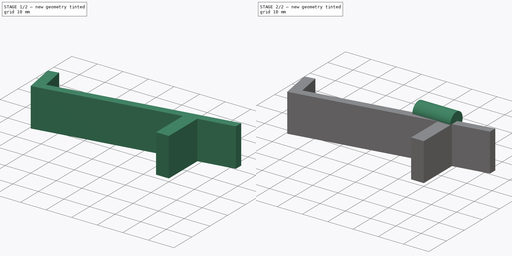
[diagram: build sequence overview — one tinted view per stage of 2, left to right]
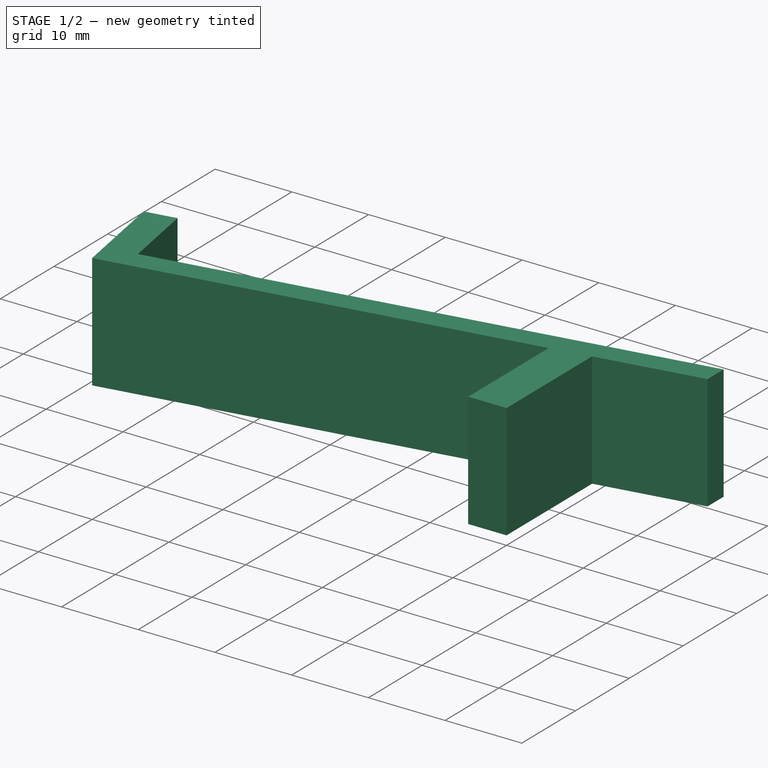
[diagram: stage 1 of 2 — iso view after this stage's code; geometry added in this stage tinted green]
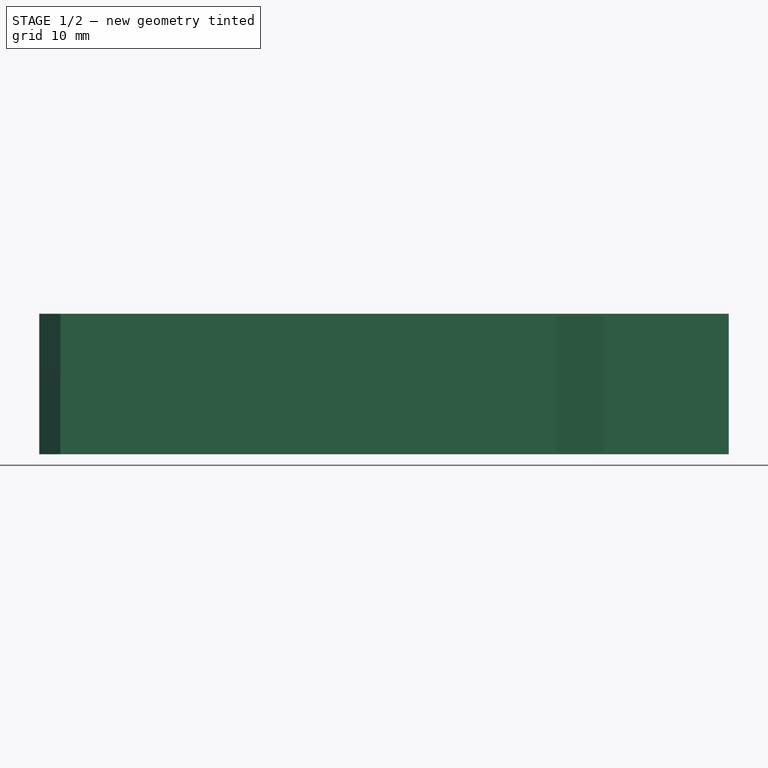
[diagram: stage 1 of 2 — front view after this stage's code; geometry added in this stage tinted green]
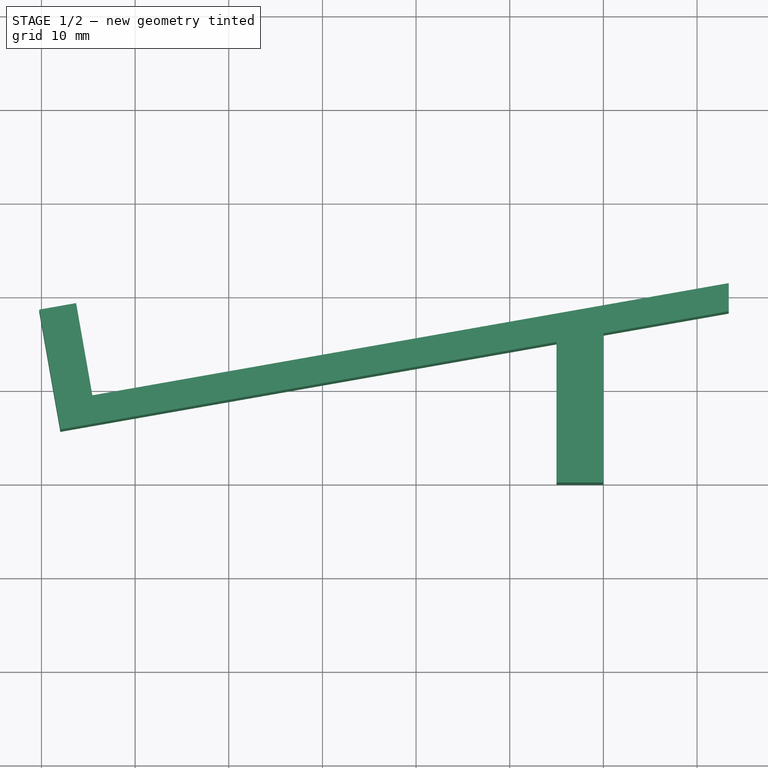
[diagram: stage 1 of 2 — top view after this stage's code; geometry added in this stage tinted green]
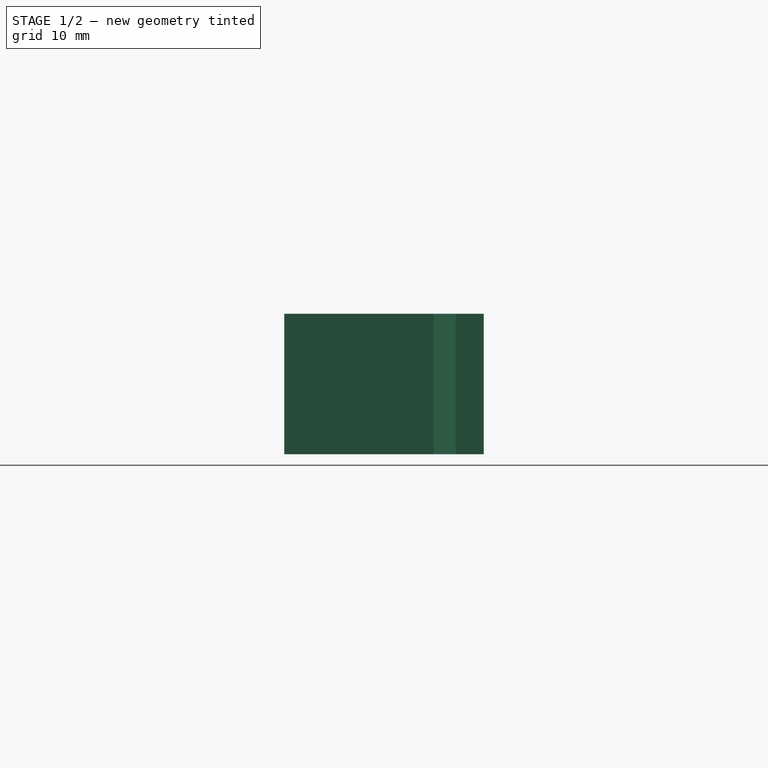
[diagram: stage 1 of 2 — right view after this stage's code; geometry added in this stage tinted green]
FCSTD DOCUMENT  (FreeCAD 0.16R)
Label: Hooks5
License: All rights reserved
LicenseURL: http://en.wikipedia.org/wiki/All_rights_reserved
objects: Sketcher::SketchObject×2, PartDesign::Pad×2
note: 6 computed .brp shape members not serialized (recipe doc carries the construction recipe); baked Part::Feature solids carry a one-line shape summary decoded from their .brp

FEATURE [Sketcher::SketchObject] Sketch
  sketch-geometry (10):
    g0: LineSegment StartX=0 StartY=0 StartZ=0 EndX=-5 EndY=0 EndZ=0
    g1: LineSegment StartX=-5 StartY=0 StartZ=0 EndX=-5 EndY=15 EndZ=0
    g2: LineSegment StartX=-5 StartY=15 StartZ=0 EndX=-57.9808 EndY=5.65805 EndZ=0
    g3: LineSegment StartX=-57.9808 StartY=5.65805 StartZ=0 EndX=-60.2382 EndY=18.4606 EndZ=0
    g4: LineSegment StartX=-60.2382 StartY=18.4606 StartZ=0 EndX=-56.299 EndY=19.1551 EndZ=0
    g5: LineSegment StartX=-56.299 StartY=19.1551 StartZ=0 EndX=-54.5625 EndY=9.30707 EndZ=0
    g6: LineSegment StartX=-54.5625 StartY=9.30707 StartZ=0 EndX=13.3892 EndY=21.2888 EndZ=0
    g7: LineSegment StartX=13.3892 StartY=21.2888 StartZ=0 EndX=13.3892 EndY=18.2888 EndZ=0
    g8: LineSegment StartX=13.3892 StartY=18.2888 StartZ=0 EndX=0 EndY=15.9279 EndZ=0
    g9: LineSegment StartX=0 StartY=0 StartZ=0 EndX=0 EndY=15.9279 EndZ=0
  constraints (29):
    c: PointOnObject(g0,g-1)
    c: Coincident(g0,g1)
    c: Vertical(g1)
    c: Coincident(g1,g2)
    c: Coincident(g2,g3)
    c: Coincident(g3,g4)
    c: Coincident(g4,g5)
    c: Coincident(g5,g6)
    c: Angle(g2) = -2.96706
    c: Distance(g5) = 10
    c: Distance(g6) = 69
    c: Distance(g0) = 5
    c: Perpendicular(g3,g2)
    c: Parallel(g4,g2)
    c: Parallel(g5,g3)
    c: Distance(g4) = 4
    c: Distance(g5,g2) = 3
    c: Parallel(g6,g2)
    c: Distance(g1) = 15
    c: Coincident(g7,g8)
    c: Vertical(g7)
    c: DistanceY(g7,g7) = 3
    c: Coincident(g9,g-1)
    c: Coincident(g9,g8)
    c: Vertical(g9)
    c: Coincident(g6,g7)
    c: Coincident(g0,g-1)
    c: Parallel(g8,g2)
    c: DistanceX(g7) = 13.3892
FEATURE [PartDesign::Pad] Pad
  Length = 15
  Length2 = 100
  Sketch = -> Sketch
  Type = 0
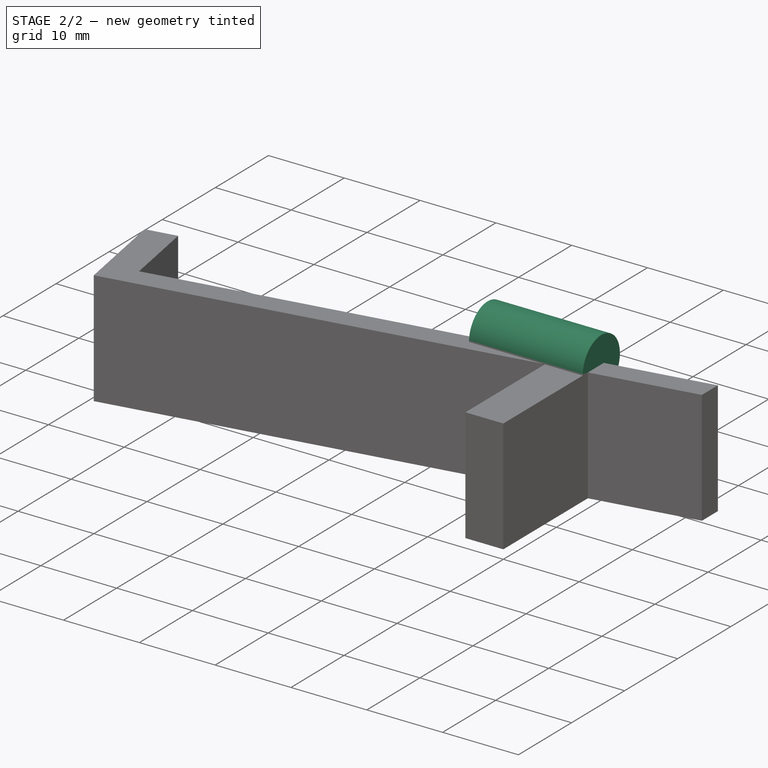
[diagram: stage 2 of 2 — iso view after this stage's code; geometry added in this stage tinted green]
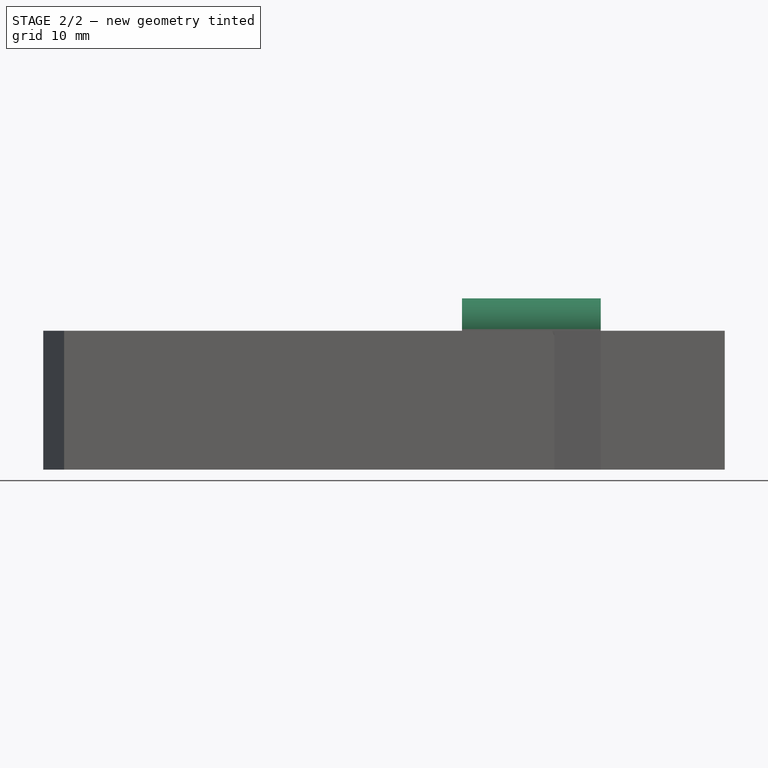
[diagram: stage 2 of 2 — front view after this stage's code; geometry added in this stage tinted green]
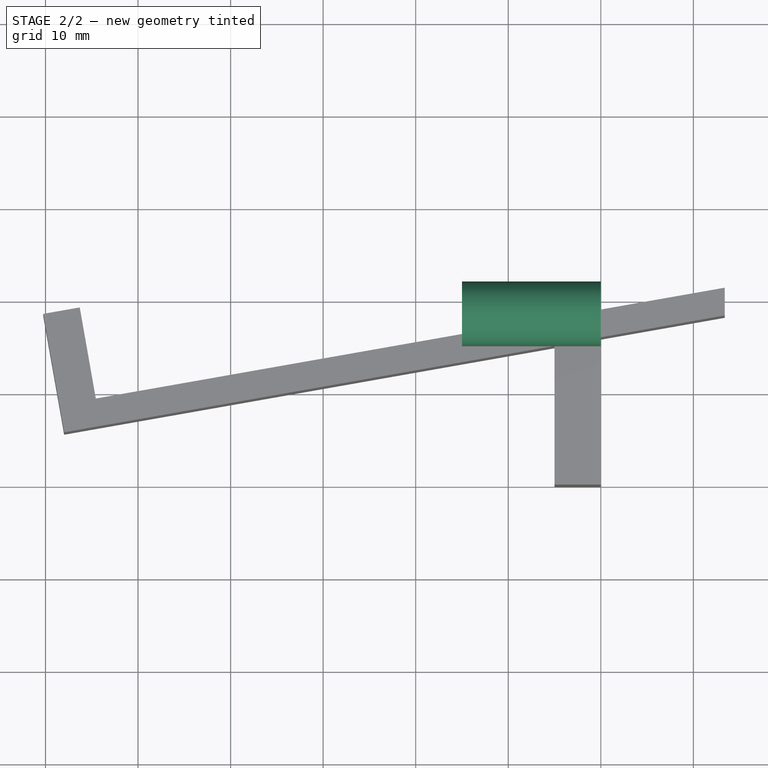
[diagram: stage 2 of 2 — top view after this stage's code; geometry added in this stage tinted green]
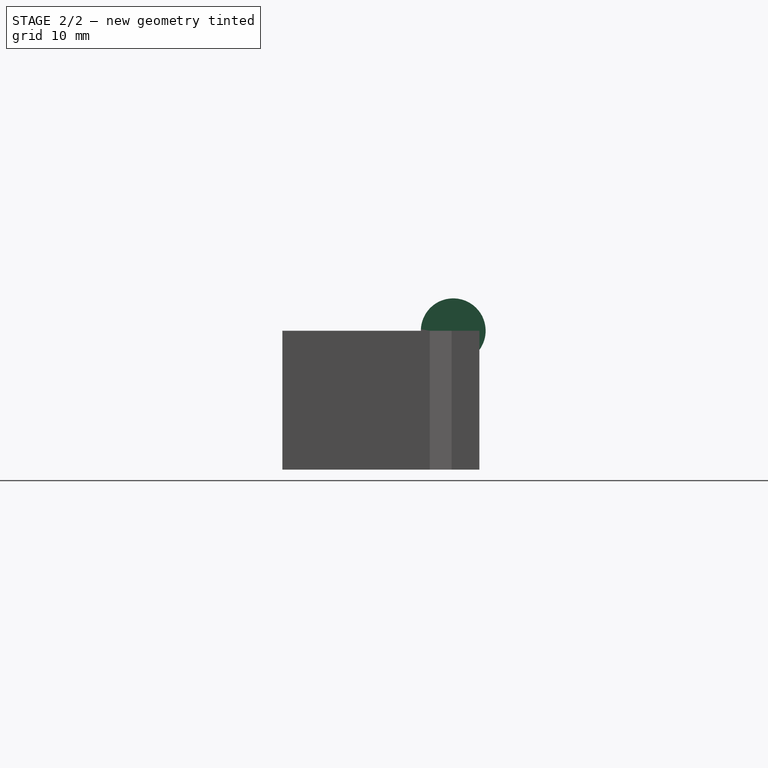
[diagram: stage 2 of 2 — right view after this stage's code; geometry added in this stage tinted green]
FEATURE [Sketcher::SketchObject] Sketch001
  ExternalGeometry = -> [Pad]
  Placement = pos=(0,0,0) rot=(0.57735,0.57735,0.57735;2.0944rad)
  Support = -> Pad [Face10]
  sketch-geometry (1):
    g0: Circle CenterX=18.4606 CenterY=15 CenterZ=0 NormalX=0 NormalY=0 NormalZ=1 Radius=3.5
  constraints (2):
    c: Coincident(g0,g-4)
    c: Radius(g0) = 3.5
FEATURE [PartDesign::Pad] Pad001
  Length = 15
  Length2 = 100
  Reversed = true
  Sketch = -> Sketch001
  Type = 0
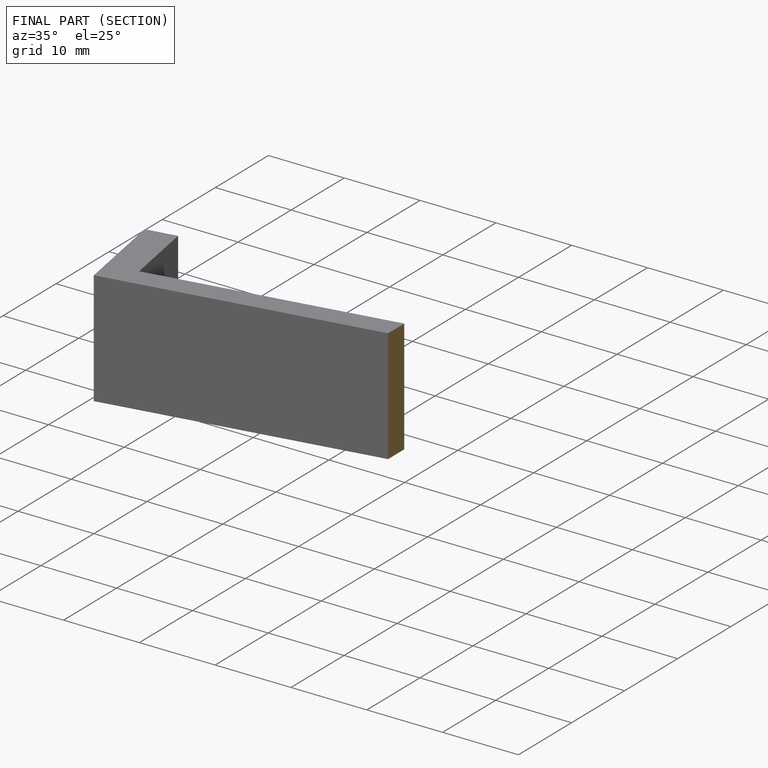
[diagram: finished part — half-section view (interior)]
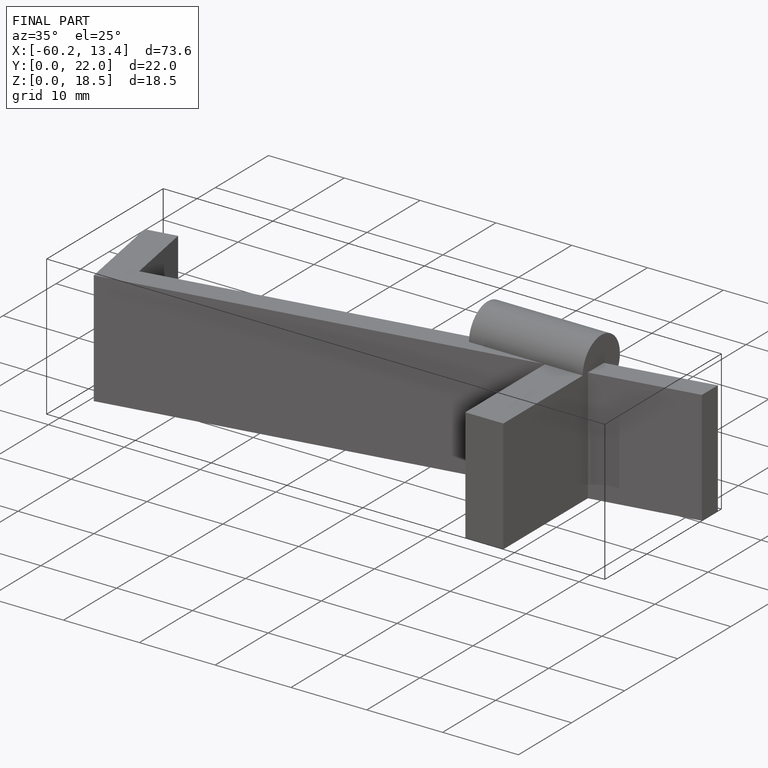
[diagram: finished part — iso view with bounding-box wireframe]
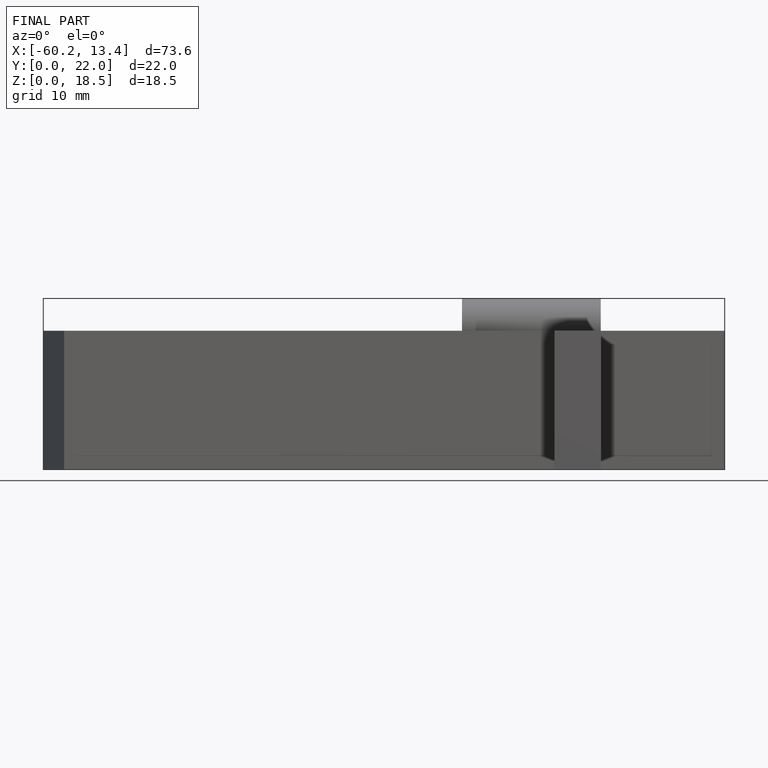
[diagram: finished part — front view with bounding-box wireframe]
